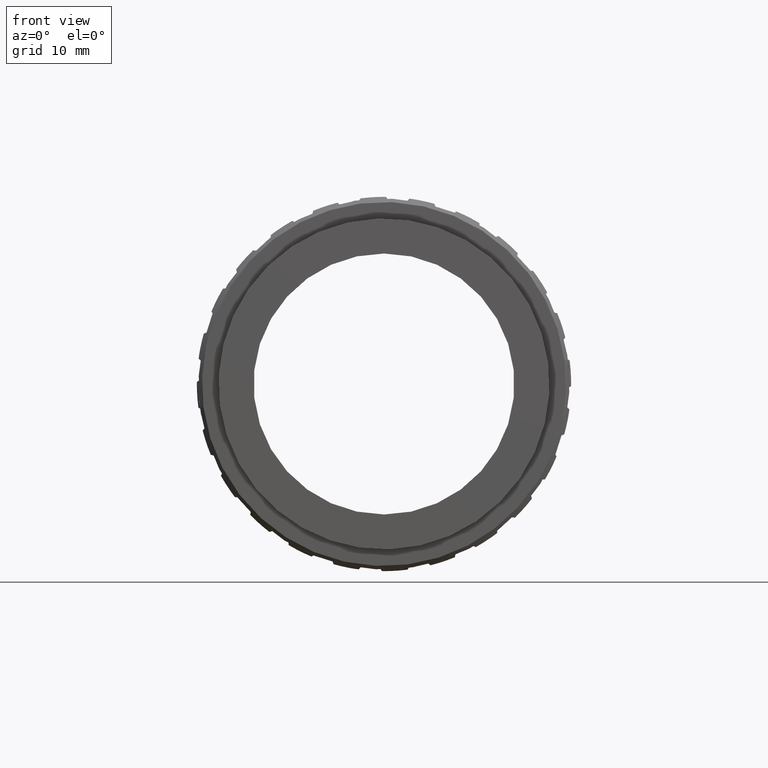
[diagram: clean part render]
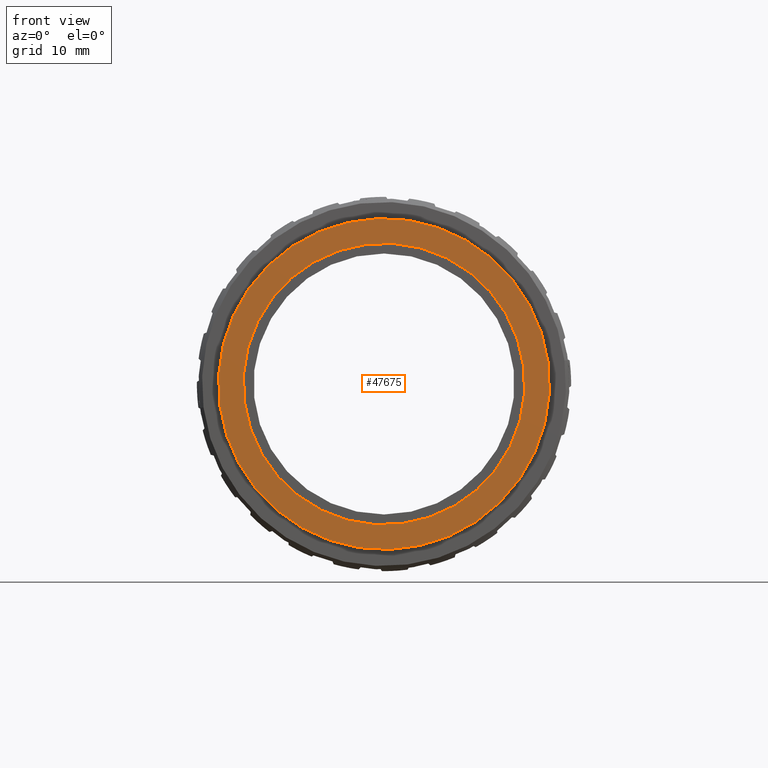
[diagram: same view with one face highlighted and labeled with its STEP entity id]
A machine part, front view. The second image highlights one B-rep face of the part: STEP entity #47675.
In plain terms, the highlighted planar face has unit normal (-0, 1, -0).
Its self-contained STEP definition (entity closure, byte-faithful):
#1253 = VERTEX_POINT ( 'NONE', #65183 ) ;
#2623 = DIRECTION ( 'NONE',  ( -0.0000000000000000000, 1.000000000000000000, 0.0000000000000000000 ) ) ;
#2858 = CIRCLE ( 'NONE', #59361, 20.50000000000000700 ) ;
#3417 = DIRECTION ( 'NONE',  ( -0.0000000000000000000, 1.000000000000000000, -0.0000000000000000000 ) ) ;
#3533 = DIRECTION ( 'NONE',  ( -0.0000000000000000000, 1.000000000000000000, -0.0000000000000000000 ) ) ;
#7438 = DIRECTION ( 'NONE',  ( -0.0000000000000000000, 1.000000000000000000, -0.0000000000000000000 ) ) ;
#8802 = DIRECTION ( 'NONE',  ( 0.0000000000000000000, 0.0000000000000000000, 1.000000000000000000 ) ) ;
#9321 = PLANE ( 'NONE',  #12105 ) ;
#10849 = ORIENTED_EDGE ( 'NONE', *, *, #44775, .F. ) ;
#11774 = ORIENTED_EDGE ( 'NONE', *, *, #18000, .F. ) ;
#12017 = VERTEX_POINT ( 'NONE', #72476 ) ;
#12105 = AXIS2_PLACEMENT_3D ( 'NONE', #42890, #2623, #42608 ) ;
#12912 = CIRCLE ( 'NONE', #39481, 24.10000000000000900 ) ;
#15476 = CIRCLE ( 'NONE', #80622, 24.10000000000000900 ) ;
#16786 = EDGE_LOOP ( 'NONE', ( #66907, #53768 ) ) ;
#18000 = EDGE_CURVE ( 'NONE', #71985, #52814, #15476, .T. ) ;
#20800 = EDGE_CURVE ( 'NONE', #12017, #1253, #51816, .T. ) ;
#25789 = CARTESIAN_POINT ( 'NONE',  ( 0.0000000000000000000, -14.79999999999999400, 0.0000000000000000000 ) ) ;
#30091 = CARTESIAN_POINT ( 'NONE',  ( 0.0000000000000000000, -14.79999999999999400, 0.0000000000000000000 ) ) ;
#32504 = DIRECTION ( 'NONE',  ( -0.0000000000000000000, 1.000000000000000000, -0.0000000000000000000 ) ) ;
#35034 = CARTESIAN_POINT ( 'NONE',  ( 2.951398785945122000E-015, -14.79999999999999400, -24.10000000000000900 ) ) ;
#39481 = AXIS2_PLACEMENT_3D ( 'NONE', #66628, #7438, #54092 ) ;
#41580 = AXIS2_PLACEMENT_3D ( 'NONE', #77758, #3417, #63485 ) ;
#42608 = DIRECTION ( 'NONE',  ( 0.0000000000000000000, 0.0000000000000000000, 1.000000000000000000 ) ) ;
#42890 = CARTESIAN_POINT ( 'NONE',  ( 20.50000000000000700, -14.79999999999999700, 0.0000000000000000000 ) ) ;
#44775 = EDGE_CURVE ( 'NONE', #52814, #71985, #12912, .T. ) ;
#47675 = ADVANCED_FACE ( 'NONE', ( #59095, #69527 ), #9321, .F. ) ;
#51816 = CIRCLE ( 'NONE', #41580, 20.50000000000000700 ) ;
#52814 = VERTEX_POINT ( 'NONE', #74025 ) ;
#53768 = ORIENTED_EDGE ( 'NONE', *, *, #20800, .T. ) ;
#54092 = DIRECTION ( 'NONE',  ( 0.0000000000000000000, 0.0000000000000000000, 1.000000000000000000 ) ) ;
#56767 = EDGE_LOOP ( 'NONE', ( #10849, #11774 ) ) ;
#59095 = FACE_OUTER_BOUND ( 'NONE', #56767, .T. ) ;
#59361 = AXIS2_PLACEMENT_3D ( 'NONE', #25789, #32504, #77982 ) ;
#63485 = DIRECTION ( 'NONE',  ( 0.0000000000000000000, 0.0000000000000000000, 1.000000000000000000 ) ) ;
#63894 = EDGE_CURVE ( 'NONE', #1253, #12017, #2858, .T. ) ;
#65183 = CARTESIAN_POINT ( 'NONE',  ( 0.0000000000000000000, -14.79999999999999400, 20.50000000000000700 ) ) ;
#66628 = CARTESIAN_POINT ( 'NONE',  ( 0.0000000000000000000, -14.79999999999999400, 0.0000000000000000000 ) ) ;
#66907 = ORIENTED_EDGE ( 'NONE', *, *, #63894, .T. ) ;
#69527 = FACE_BOUND ( 'NONE', #16786, .T. ) ;
#71985 = VERTEX_POINT ( 'NONE', #35034 ) ;
#72476 = CARTESIAN_POINT ( 'NONE',  ( 2.510525938252074900E-015, -14.79999999999999400, -20.50000000000000700 ) ) ;
#74025 = CARTESIAN_POINT ( 'NONE',  ( 0.0000000000000000000, -14.79999999999999400, 24.10000000000000900 ) ) ;
#77758 = CARTESIAN_POINT ( 'NONE',  ( 0.0000000000000000000, -14.79999999999999400, 0.0000000000000000000 ) ) ;
#77982 = DIRECTION ( 'NONE',  ( 0.0000000000000000000, 0.0000000000000000000, 1.000000000000000000 ) ) ;
#80622 = AXIS2_PLACEMENT_3D ( 'NONE', #30091, #3533, #8802 ) ;